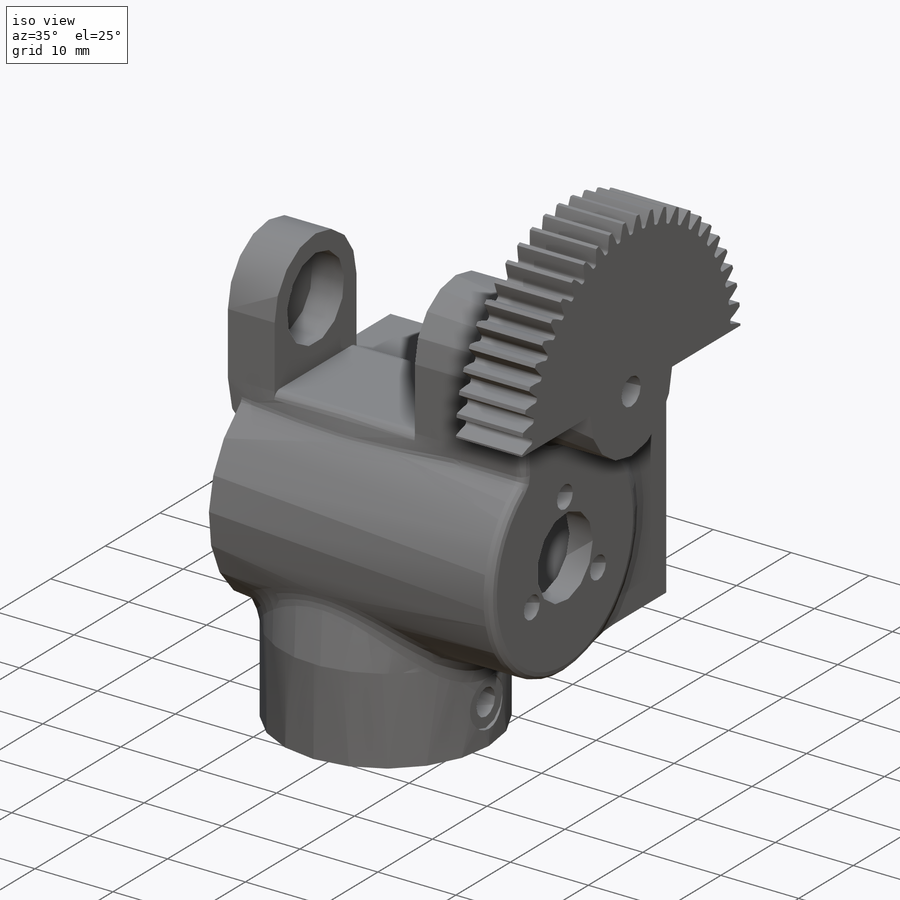
[diagram: iso view]
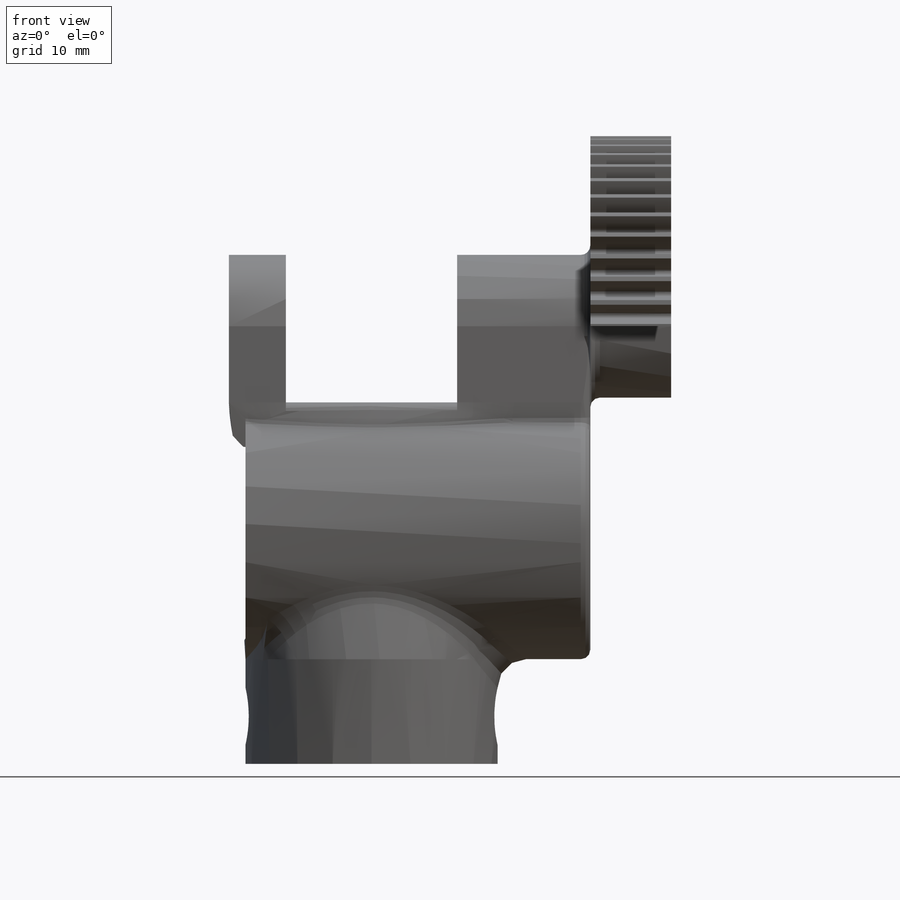
[diagram: front view]
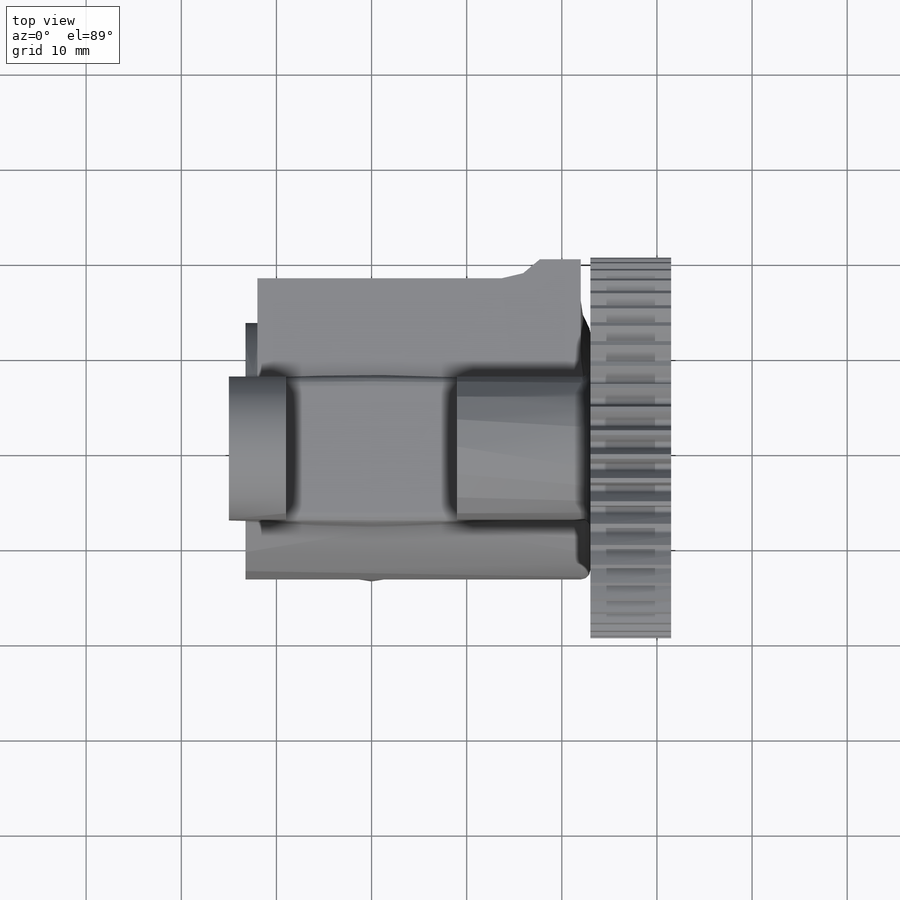
[diagram: top view]
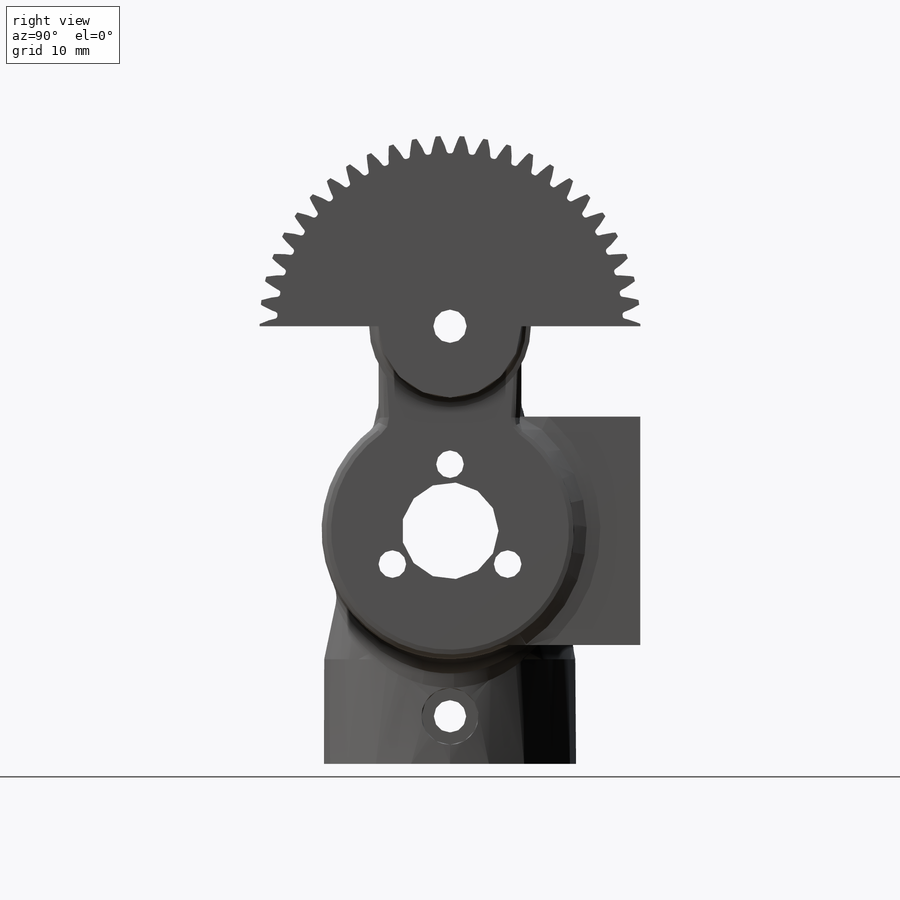
[diagram: right view]
SOLIDWORKS PART (.sldprt)
format: sldprt  version: not decoded by parser v0  size: 860,160 bytes
history: native  units: mm
features: sketch x20, extrude x9, cut_extrude x6, fillet x5, plane x4, hole x2, mirror x2, material x1, pattern_circular x1, chamfer x1 (+13 scaffold rows collapsed)
feature tree (64):
  scaffold x13  (default folders/planes/origin — collapsed)
  material  "PLA Black"
  sketch  "Sketch1"  dims[c1.D1=20.0mm c1.D2=20.0mm c2.D1=19.0mm c2.D2=21.0mm c2.D4=~11.300096mm c3.D2=1.5mm c3.D4=3.0mm c3.D3=3.0mm]
  extrude  "Boss-Extrude1"  Depth=10mm
  plane  "Plane3"
  hole  "M3 Clearance Hole1"  Diameter=3.4mm Depth=26.5mm
  sketch  "Sketch18"
  sketch  "Sketch17"  dims[hole-wizard template sketch: 60 standard entries collapsed; hole parameters kept: c18.Thru Hole Depth=26.5mm]
  sketch  "Sketch19"  dims[D1=6.0mm]
  cut_extrude  "Cut-Extrude4"  Depth=0.4mm
  mirror  "Mirror1"
  sketch  "Sketch2"
  extrude  "Boss-Extrude2"  Depth=1mm
  plane  "Plane1"  Offset=20mm
  sketch  "Sketch3"  dims[c1.D1=25.0mm c1.D2=25.0mm c1.D3=8.0mm c1.D4=2.1mm c2.D1=22.0mm c2.D2=1.0mm c2.D5=7.0mm c3.D2=2.5mm]
  extrude  "Boss-Extrude3"  Depth=3mm
  plane  "Plane2"
  sketch  "Sketch7"  dims[D1=30.0mm D2=15.0mm]
  sketch  "Sketch20"  dims[D1=2.0mm]
  cut_extrude  "Cut-Extrude5"  [1 undecoded]
  sketch  "Sketch23"  dims[D1=10.2mm]
  cut_extrude  "Cut-Extrude6"  [1 undecoded]
  hole  "M2.5 Clearance Hole1"  Diameter=2.9mm Depth=38.011168mm
  sketch  "Sketch25"  dims[D2=7.0mm D1=3.0]
  sketch  "Sketch24"  dims[hole-wizard template sketch: 60 standard entries collapsed; hole parameters kept: c18.Thru Hole Depth=~38.011168mm]
  sketch  "Sketch22"  dims[D1=6.0mm]
  extrude  "Boss-Extrude4"  Depth=15.5mm
  sketch  "Sketch26"  dims[c1.D2=3.5mm c1.D1=15.0mm c2.D1=~179.041141deg c3.D1=0.1mm]
  cut_extrude  "Cut-Extrude7"  Depth=15mm
  sketch  "Sketch30"  dims[D1=10.5mm]
  cut_extrude  "Cut-Extrude9"  Depth=4.1mm
  mirror  "Mirror2"
  sketch  "Sketch29"
  extrude  "Boss-Extrude7"  Depth=8mm
  sketch  "Sketch27"  dims[D1=~20.012121mm]
  extrude  "Boss-Extrude5"  Depth=8.5mm
  sketch  "Sketch28"
  cut_extrude  "Cut-Extrude8"  [1 undecoded]
  pattern_circular  "CirPattern1"  Count=50 Angle=360deg
  fillet  "Fillet1"  Radius=1mm
  fillet  "Fillet2"  Radius=3mm
  fillet  "Fillet3"  Radius=1mm
  fillet  "Fillet4"  Radius=1mm
  plane  "Plane4"
  sketch  "Sketch31"  dims[D1=34.0mm D2=24.0mm]
  extrude  "Boss-Extrude8"  [1 undecoded]
  sketch  "Sketch32"  dims[D2=2.4mm D1=1.8mm]
  extrude  "Boss-Extrude9"  Depth=4.5mm
  sketch  "Sketch33"  dims[D1=2.5mm]
  extrude  "Boss-Extrude11"  Depth=2mm
  fillet  "Fillet5"  Radius=5mm
  chamfer  "Chamfer1"  Distance=0.875mm Angle=45deg
decode coverage: 36 of 46 modeling features carry decoded parameters
note: ~ marks probable driven/reference dimensions
note: 4 parameter values undecoded
summary: no parameter record found for 4 features
note: suppression state not decoded; provenance and decode notes live in map.json
